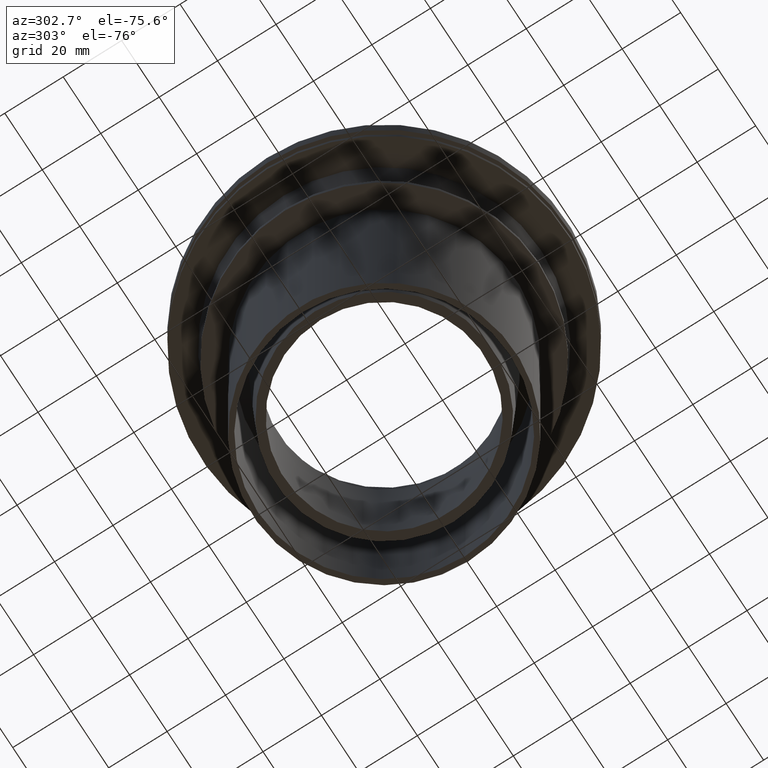
[diagram: clean part render]
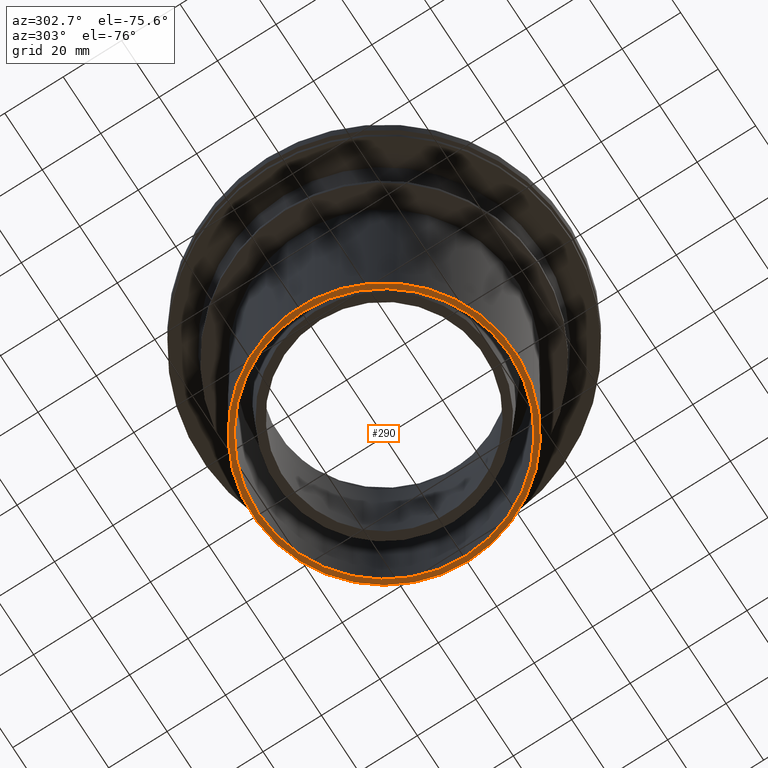
[diagram: same view with one face highlighted and labeled with its STEP entity id]
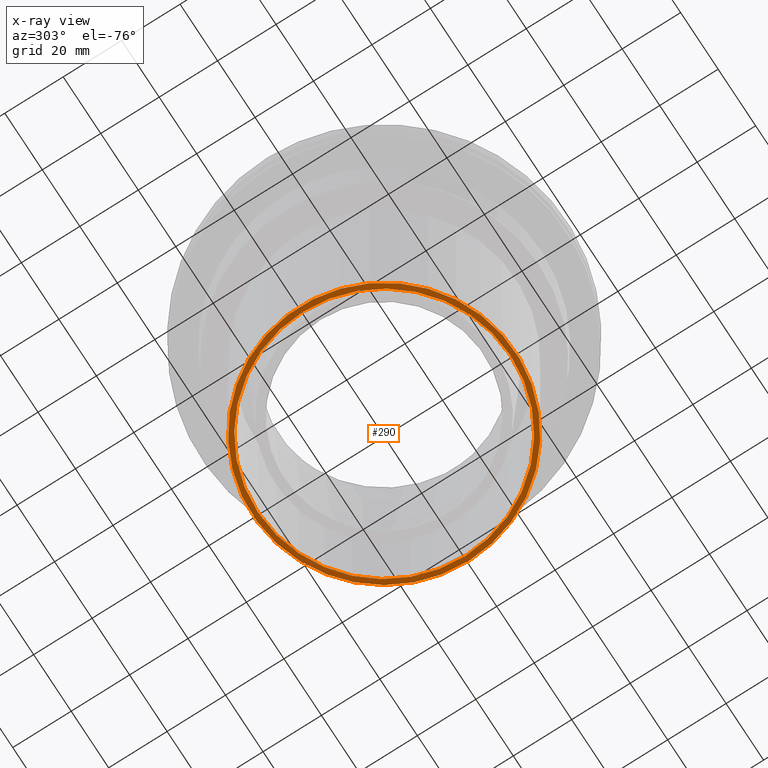
[diagram: x-ray of the same camera — body ghosted, the highlighted face saturated]
A machine part, auxiliary view. The second image highlights one B-rep face of the part: STEP entity #290.
The next image is the same camera in x-ray: the body ghosted, the highlighted face saturated — about 0% of this face is hidden behind the body in this view.
In plain terms, the highlighted planar face has unit normal (0, 0, -1).
Its self-contained STEP definition (entity closure, byte-faithful):
#48=ORIENTED_EDGE('',*,*,#100,.T.);
#49=ORIENTED_EDGE('',*,*,#101,.F.);
#100=EDGE_CURVE('',#126,#126,#152,.T.);
#101=EDGE_CURVE('',#127,#127,#153,.T.);
#126=VERTEX_POINT('',#509);
#127=VERTEX_POINT('',#511);
#152=CIRCLE('',#343,43.2);
#153=CIRCLE('',#344,45.);
#178=EDGE_LOOP('',(#48));
#179=EDGE_LOOP('',(#49));
#230=FACE_BOUND('',#178,.T.);
#231=FACE_BOUND('',#179,.T.);
#282=PLANE('',#342);
#290=ADVANCED_FACE('',(#230,#231),#282,.T.);
#342=AXIS2_PLACEMENT_3D('',#507,#398,#399);
#343=AXIS2_PLACEMENT_3D('',#508,#400,#401);
#344=AXIS2_PLACEMENT_3D('',#510,#402,#403);
#398=DIRECTION('',(0.,0.,-1.));
#399=DIRECTION('',(-1.,0.,0.));
#400=DIRECTION('',(0.,0.,1.));
#401=DIRECTION('',(1.,0.,0.));
#402=DIRECTION('',(0.,0.,1.));
#403=DIRECTION('',(1.,0.,0.));
#507=CARTESIAN_POINT('',(45.,0.,-85.));
#508=CARTESIAN_POINT('',(0.,0.,-85.));
#509=CARTESIAN_POINT('',(43.2,0.,-85.));
#510=CARTESIAN_POINT('',(0.,0.,-85.));
#511=CARTESIAN_POINT('',(45.,0.,-85.));